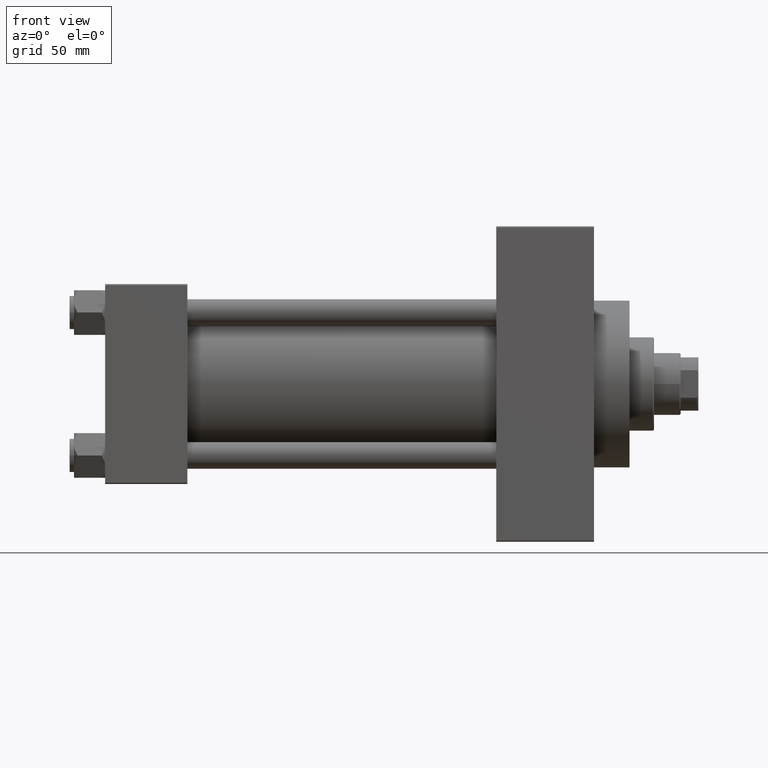
[diagram: clean part render]
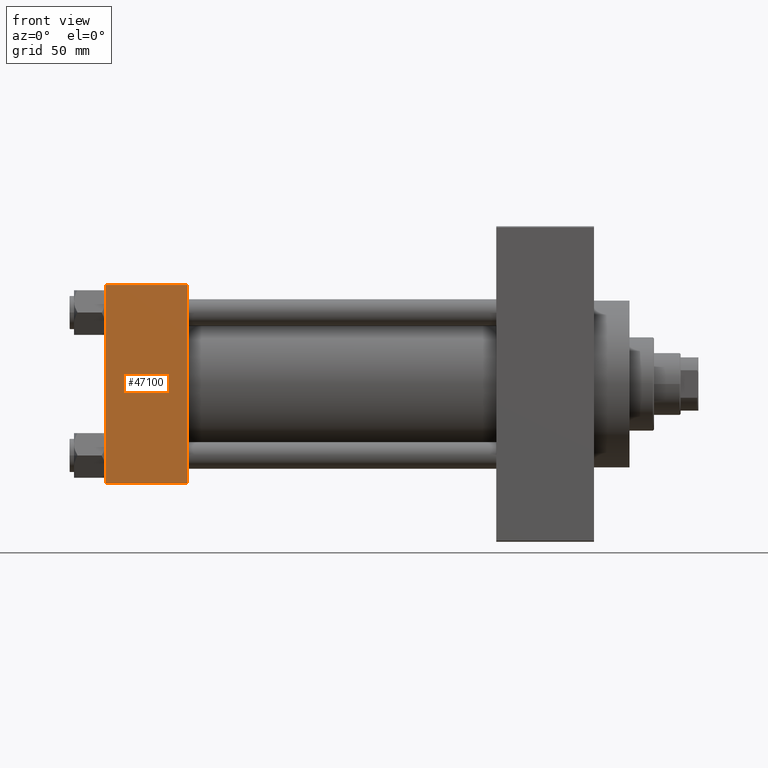
[diagram: same view with one face highlighted and labeled with its STEP entity id]
A machine part, front view. The second image highlights one B-rep face of the part: STEP entity #47100.
In plain terms, the highlighted planar face has unit normal (0, 1, 0).
Its self-contained STEP definition (entity closure, byte-faithful):
#644 = EDGE_CURVE ( 'NONE', #3757, #4743, #13381, .T. ) ;
#3757 = VERTEX_POINT ( 'NONE', #29076 ) ;
#4625 = LINE ( 'NONE', #11576, #15226 ) ;
#4743 = VERTEX_POINT ( 'NONE', #46884 ) ;
#6461 = FACE_OUTER_BOUND ( 'NONE', #31680, .T. ) ;
#8806 = VECTOR ( 'NONE', #26739, 1000.000000000000000 ) ;
#9564 = ORIENTED_EDGE ( 'NONE', *, *, #22344, .T. ) ;
#9866 = ORIENTED_EDGE ( 'NONE', *, *, #37034, .F. ) ;
#10066 = CARTESIAN_POINT ( 'NONE',  ( 37.00000000000000000, -45.00000000000000711, 45.00000000000000000 ) ) ;
#10856 = VECTOR ( 'NONE', #13857, 1000.000000000000000 ) ;
#11576 = CARTESIAN_POINT ( 'NONE',  ( 37.00000000000000000, -45.00000000000000000, -44.49999999999998579 ) ) ;
#12482 = VERTEX_POINT ( 'NONE', #26553 ) ;
#13060 = VECTOR ( 'NONE', #44606, 1000.000000000000000 ) ;
#13381 = LINE ( 'NONE', #46507, #10856 ) ;
#13857 = DIRECTION ( 'NONE',  ( 0.000000000000000000, 7.709882115452476934E-17, -1.000000000000000000 ) ) ;
#14925 = CARTESIAN_POINT ( 'NONE',  ( 37.00000000000000000, -45.00000000000000000, -44.49999999999995737 ) ) ;
#15226 = VECTOR ( 'NONE', #41331, 1000.000000000000000 ) ;
#16653 = LINE ( 'NONE', #27680, #8806 ) ;
#18094 = ORIENTED_EDGE ( 'NONE', *, *, #18613, .T. ) ;
#18613 = EDGE_CURVE ( 'NONE', #4743, #43530, #4625, .T. ) ;
#18913 = ORIENTED_EDGE ( 'NONE', *, *, #644, .T. ) ;
#21104 = DIRECTION ( 'NONE',  ( -0.000000000000000000, 1.000000000000000000, 7.709882115452478166E-17 ) ) ;
#22344 = EDGE_CURVE ( 'NONE', #12482, #3757, #29503, .T. ) ;
#24694 = DIRECTION ( 'NONE',  ( 0.000000000000000000, -7.709882115452478166E-17, 1.000000000000000000 ) ) ;
#26553 = CARTESIAN_POINT ( 'NONE',  ( 37.00000000000000000, -45.00000000000000711, 44.49999999999997158 ) ) ;
#26739 = DIRECTION ( 'NONE',  ( 0.000000000000000000, 7.709882115452476934E-17, -1.000000000000000000 ) ) ;
#27680 = CARTESIAN_POINT ( 'NONE',  ( 37.00000000000000000, -45.00000000000000711, 45.00000000000000000 ) ) ;
#29076 = CARTESIAN_POINT ( 'NONE',  ( 0.000000000000000000, -45.00000000000000711, 44.49999999999997158 ) ) ;
#29503 = LINE ( 'NONE', #33587, #13060 ) ;
#31680 = EDGE_LOOP ( 'NONE', ( #18913, #18094, #9866, #9564 ) ) ;
#31907 = PLANE ( 'NONE',  #42612 ) ;
#33587 = CARTESIAN_POINT ( 'NONE',  ( 37.00000000000000000, -45.00000000000000711, 44.49999999999997158 ) ) ;
#37034 = EDGE_CURVE ( 'NONE', #12482, #43530, #16653, .T. ) ;
#41331 = DIRECTION ( 'NONE',  ( 1.000000000000000000, 0.000000000000000000, 0.000000000000000000 ) ) ;
#42612 = AXIS2_PLACEMENT_3D ( 'NONE', #10066, #21104, #24694 ) ;
#43530 = VERTEX_POINT ( 'NONE', #14925 ) ;
#44606 = DIRECTION ( 'NONE',  ( -1.000000000000000000, 0.000000000000000000, 0.000000000000000000 ) ) ;
#46507 = CARTESIAN_POINT ( 'NONE',  ( 0.000000000000000000, -45.00000000000000711, 45.00000000000000000 ) ) ;
#46884 = CARTESIAN_POINT ( 'NONE',  ( 0.000000000000000000, -45.00000000000000000, -44.49999999999995737 ) ) ;
#47100 = ADVANCED_FACE ( 'NONE', ( #6461 ), #31907, .F. ) ;